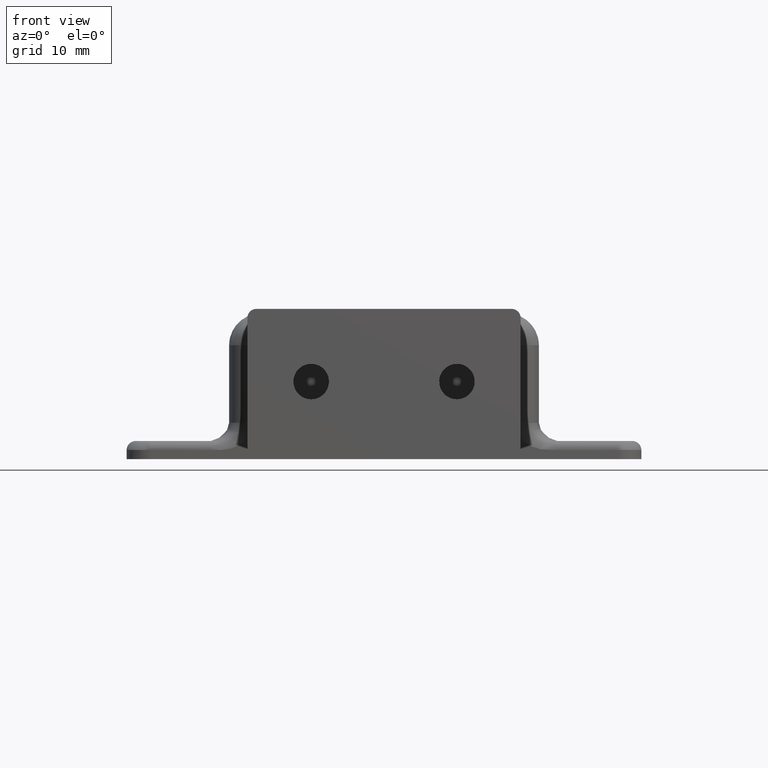
[diagram: clean part render]
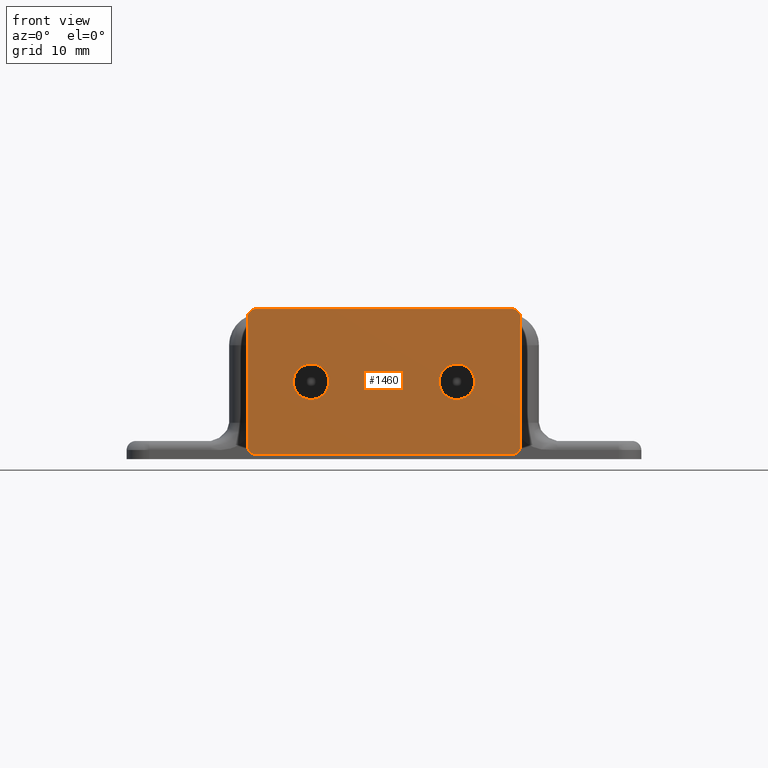
[diagram: same view with one face highlighted and labeled with its STEP entity id]
A machine part, front view. The second image highlights one B-rep face of the part: STEP entity #1460.
In plain terms, the highlighted face is a freeform B-spline surface patch.
Its self-contained STEP definition (entity closure, byte-faithful):
#781=CARTESIAN_POINT('',(-9.943988800772612,-28.100005999999901,8.347004763241912));
#782=VERTEX_POINT('',#781);
#788=CARTESIAN_POINT('',(-8.0,-28.100005999999901,6.550000000000001));
#789=VERTEX_POINT('',#788);
#790=CARTESIAN_POINT('',(-8.0,-28.100005999999901,6.550000000000001));
#791=CARTESIAN_POINT('',(-9.802561458568334,-28.100005999999890,6.550000000000001));
#792=CARTESIAN_POINT('',(-9.943988800772612,-28.100005999999905,8.347004763241912));
#800=(BOUNDED_CURVE()B_SPLINE_CURVE(2,(#790,#791,#792),.UNSPECIFIED.,.F.,.U.)B_SPLINE_CURVE_WITH_KNOTS((3,3),(0.0,0.236331300617108),.UNSPECIFIED.)CURVE()GEOMETRIC_REPRESENTATION_ITEM()RATIONAL_B_SPLINE_CURVE((1.0,0.723120658623543,0.969723356139136))REPRESENTATION_ITEM(''));
#801=EDGE_CURVE('',#789,#782,#800,.T.);
#803=CARTESIAN_POINT('',(-6.056011199227388,-28.100005999999901,8.652995236758089));
#804=VERTEX_POINT('',#803);
#805=CARTESIAN_POINT('',(-6.056011199227388,-28.100005999999905,8.652995236758089));
#806=CARTESIAN_POINT('',(-6.049999999999999,-28.100005999999897,8.576615708754158));
#807=CARTESIAN_POINT('',(-6.050000000000000,-28.100005999999901,8.500000000000000));
#808=CARTESIAN_POINT('',(-6.050000000000000,-28.100005999999894,6.550000000000001));
#809=CARTESIAN_POINT('',(-8.0,-28.100005999999901,6.550000000000001));
#817=(BOUNDED_CURVE()B_SPLINE_CURVE(2,(#805,#806,#807,#808,#809),.UNSPECIFIED.,.F.,.U.)B_SPLINE_CURVE_WITH_KNOTS((3,2,3),(0.736331300617107,0.750000000000000,1.0),.UNSPECIFIED.)CURVE()GEOMETRIC_REPRESENTATION_ITEM()RATIONAL_B_SPLINE_CURVE((0.969723356139135,0.983986122563004,1.0,0.707106781186548,1.0))REPRESENTATION_ITEM(''));
#818=EDGE_CURVE('',#804,#789,#817,.T.);
#855=CARTESIAN_POINT('',(-8.0,-28.100005999999901,10.449999999999999));
#856=VERTEX_POINT('',#855);
#857=CARTESIAN_POINT('',(-8.0,-28.100005999999901,10.449999999999999));
#858=CARTESIAN_POINT('',(-6.197438541431668,-28.100005999999908,10.450000000000001));
#859=CARTESIAN_POINT('',(-6.056011199227388,-28.100005999999905,8.652995236758089));
#867=(BOUNDED_CURVE()B_SPLINE_CURVE(2,(#857,#858,#859),.UNSPECIFIED.,.F.,.U.)B_SPLINE_CURVE_WITH_KNOTS((3,3),(0.500000000000000,0.736331300617108),.UNSPECIFIED.)CURVE()GEOMETRIC_REPRESENTATION_ITEM()RATIONAL_B_SPLINE_CURVE((1.0,0.723120658623543,0.969723356139136))REPRESENTATION_ITEM(''));
#868=EDGE_CURVE('',#856,#804,#867,.T.);
#870=CARTESIAN_POINT('',(-9.943988800772612,-28.100005999999894,8.347004763241912));
#871=CARTESIAN_POINT('',(-9.950000000000001,-28.100005999999905,8.423384291245840));
#872=CARTESIAN_POINT('',(-9.950000000000001,-28.100005999999901,8.500000000000000));
#873=CARTESIAN_POINT('',(-9.950000000000001,-28.100005999999894,10.450000000000001));
#874=CARTESIAN_POINT('',(-8.0,-28.100005999999901,10.449999999999999));
#882=(BOUNDED_CURVE()B_SPLINE_CURVE(2,(#870,#871,#872,#873,#874),.UNSPECIFIED.,.F.,.U.)B_SPLINE_CURVE_WITH_KNOTS((3,2,3),(0.236331300617107,0.250000000000000,0.500000000000000),.UNSPECIFIED.)CURVE()GEOMETRIC_REPRESENTATION_ITEM()RATIONAL_B_SPLINE_CURVE((0.969723356139135,0.983986122563005,1.0,0.707106781186548,1.0))REPRESENTATION_ITEM(''));
#883=EDGE_CURVE('',#782,#856,#882,.T.);
#1128=CARTESIAN_POINT('',(9.936368576392088,-28.100005999999901,8.269833242275775));
#1129=VERTEX_POINT('',#1128);
#1135=CARTESIAN_POINT('',(8.0,-28.100005999999901,10.449999999999999));
#1136=VERTEX_POINT('',#1135);
#1137=CARTESIAN_POINT('',(9.936368576392088,-28.100005999999908,8.269833242275775));
#1138=CARTESIAN_POINT('',(9.950000000000001,-28.100005999999905,8.384512966533711));
#1139=CARTESIAN_POINT('',(9.950000000000001,-28.100005999999901,8.500000000000000));
#1140=CARTESIAN_POINT('',(9.950000000000001,-28.100005999999894,10.450000000000001));
#1141=CARTESIAN_POINT('',(8.0,-28.100005999999901,10.449999999999999));
#1149=(BOUNDED_CURVE()B_SPLINE_CURVE(2,(#1137,#1138,#1139,#1140,#1141),.UNSPECIFIED.,.F.,.U.)B_SPLINE_CURVE_WITH_KNOTS((3,2,3),(0.229562473490587,0.250000000000000,0.500000000000000),.UNSPECIFIED.)CURVE()GEOMETRIC_REPRESENTATION_ITEM()RATIONAL_B_SPLINE_CURVE((0.956026754138773,0.976055948304291,1.0,0.707106781186548,1.0))REPRESENTATION_ITEM(''));
#1150=EDGE_CURVE('',#1129,#1136,#1149,.T.);
#1152=CARTESIAN_POINT('',(6.053636989534108,-28.100005999999901,8.619042141629866));
#1153=VERTEX_POINT('',#1152);
#1154=CARTESIAN_POINT('',(8.0,-28.100005999999901,10.449999999999999));
#1155=CARTESIAN_POINT('',(6.165620799090311,-28.100005999999905,10.450000000000001));
#1156=CARTESIAN_POINT('',(6.053636989534108,-28.100005999999901,8.619042141629866));
#1164=(BOUNDED_CURVE()B_SPLINE_CURVE(2,(#1154,#1155,#1156),.UNSPECIFIED.,.F.,.U.)B_SPLINE_CURVE_WITH_KNOTS((3,3),(0.500000000000000,0.739333184796781),.UNSPECIFIED.)CURVE()GEOMETRIC_REPRESENTATION_ITEM()RATIONAL_B_SPLINE_CURVE((1.0,0.719603732543983,0.976072518650995))REPRESENTATION_ITEM(''));
#1165=EDGE_CURVE('',#1136,#1153,#1164,.T.);
#1199=CARTESIAN_POINT('',(8.0,-28.100005999999901,6.550000000000001));
#1200=VERTEX_POINT('',#1199);
#1201=CARTESIAN_POINT('',(6.053636989534108,-28.100005999999901,8.619042141629866));
#1202=CARTESIAN_POINT('',(6.050000000000000,-28.100005999999894,8.559576629681274));
#1203=CARTESIAN_POINT('',(6.050000000000000,-28.100005999999901,8.500000000000000));
#1204=CARTESIAN_POINT('',(6.050000000000000,-28.100005999999894,6.550000000000001));
#1205=CARTESIAN_POINT('',(8.0,-28.100005999999901,6.550000000000001));
#1213=(BOUNDED_CURVE()B_SPLINE_CURVE(2,(#1201,#1202,#1203,#1204,#1205),.UNSPECIFIED.,.F.,.U.)B_SPLINE_CURVE_WITH_KNOTS((3,2,3),(0.739333184796781,0.750000000000000,1.0),.UNSPECIFIED.)CURVE()GEOMETRIC_REPRESENTATION_ITEM()RATIONAL_B_SPLINE_CURVE((0.976072518650995,0.987503048642564,1.0,0.707106781186548,1.0))REPRESENTATION_ITEM(''));
#1214=EDGE_CURVE('',#1153,#1200,#1213,.T.);
#1216=CARTESIAN_POINT('',(8.0,-28.100005999999901,6.550000000000001));
#1217=CARTESIAN_POINT('',(9.731940325346576,-28.100005999999905,6.550000000000000));
#1218=CARTESIAN_POINT('',(9.936368576392088,-28.100005999999908,8.269833242275775));
#1226=(BOUNDED_CURVE()B_SPLINE_CURVE(2,(#1216,#1217,#1218),.UNSPECIFIED.,.F.,.U.)B_SPLINE_CURVE_WITH_KNOTS((3,3),(0.0,0.229562473490587),.UNSPECIFIED.)CURVE()GEOMETRIC_REPRESENTATION_ITEM()RATIONAL_B_SPLINE_CURVE((1.0,0.731050832882256,0.956026754138773))REPRESENTATION_ITEM(''));
#1227=EDGE_CURVE('',#1200,#1129,#1226,.T.);
#1347=CARTESIAN_POINT('',(-16.498499941854181,-28.100005999999901,17.299199968988891));
#1348=CARTESIAN_POINT('',(16.498500746516889,-28.100005999999901,17.299199968988891));
#1349=CARTESIAN_POINT('',(-16.498499941854181,-28.100005999999901,-0.299200398142337));
#1350=CARTESIAN_POINT('',(16.498500746516889,-28.100005999999901,-0.299200398142337));
#1351=B_SPLINE_SURFACE_WITH_KNOTS('',1,1,((#1347,#1349),(#1348,#1350)),.UNSPECIFIED.,.F.,.F.,.U.,(2,2),(2,2),(0.0,32.997000688371060),(0.0,17.598400367131230),.UNSPECIFIED.);
#1352=CARTESIAN_POINT('',(-14.000000052359880,-28.100005999999851,16.500000000000000));
#1353=VERTEX_POINT('',#1352);
#1354=CARTESIAN_POINT('',(13.999999947640120,-28.100005999999851,16.500000000000000));
#1355=VERTEX_POINT('',#1354);
#1356=CARTESIAN_POINT('',(-14.000000052359880,-28.100005999999851,16.500000000000000));
#1357=CARTESIAN_POINT('',(13.999999947640120,-28.100005999999851,16.500000000000000));
#1358=QUASI_UNIFORM_CURVE('',1,(#1356,#1357),.UNSPECIFIED.,.F.,.U.);
#1359=EDGE_CURVE('',#1353,#1355,#1358,.T.);
#1360=ORIENTED_EDGE('',*,*,#1359,.F.);
#1361=CARTESIAN_POINT('',(-15.0,-28.100005999999851,15.500000000000000));
#1362=VERTEX_POINT('',#1361);
#1363=CARTESIAN_POINT('',(-14.000000052359880,-28.100005999999851,16.500000000000000));
#1364=CARTESIAN_POINT('',(-15.0,-28.100005999999855,16.499999947640131));
#1365=CARTESIAN_POINT('',(-15.0,-28.100005999999851,15.500000000000000));
#1373=(BOUNDED_CURVE()B_SPLINE_CURVE(2,(#1363,#1364,#1365),.UNSPECIFIED.,.F.,.U.)CURVE()GEOMETRIC_REPRESENTATION_ITEM()QUASI_UNIFORM_CURVE()RATIONAL_B_SPLINE_CURVE((1.0,0.707106799698560,1.0))REPRESENTATION_ITEM(''));
#1374=EDGE_CURVE('',#1353,#1362,#1373,.T.);
#1375=ORIENTED_EDGE('',*,*,#1374,.T.);
#1376=CARTESIAN_POINT('',(-15.0,-28.100005999999851,1.500000157079635));
#1377=VERTEX_POINT('',#1376);
#1378=CARTESIAN_POINT('',(-15.0,-28.100005999999851,1.500000157079635));
#1379=CARTESIAN_POINT('',(-15.0,-28.100005999999851,15.500000000000000));
#1380=QUASI_UNIFORM_CURVE('',1,(#1378,#1379),.UNSPECIFIED.,.F.,.U.);
#1381=EDGE_CURVE('',#1377,#1362,#1380,.T.);
#1382=ORIENTED_EDGE('',*,*,#1381,.F.);
#1383=CARTESIAN_POINT('',(-14.0,-28.100005999999851,0.500000000000000));
#1384=VERTEX_POINT('',#1383);
#1385=CARTESIAN_POINT('',(-14.999999999999989,-28.100005999999851,1.500000157079635));
#1386=CARTESIAN_POINT('',(-15.000000065064516,-28.100005999999851,1.085786548698985));
#1387=CARTESIAN_POINT('',(-14.707106836722581,-28.100005999999851,0.792893274349492));
#1388=CARTESIAN_POINT('',(-14.414213608380656,-28.100005999999851,0.500000000000000));
#1389=CARTESIAN_POINT('',(-14.0,-28.100005999999851,0.500000000000000));
#1397=(BOUNDED_CURVE()B_SPLINE_CURVE(2,(#1385,#1386,#1387,#1388,#1389),.UNSPECIFIED.,.F.,.U.)B_SPLINE_CURVE_WITH_KNOTS((3,2,3),(0.0,0.500000000000000,1.0),.UNSPECIFIED.)CURVE()GEOMETRIC_REPRESENTATION_ITEM()RATIONAL_B_SPLINE_CURVE((1.0,0.923879517483343,1.0,0.923879517483343,1.0))REPRESENTATION_ITEM(''));
#1398=EDGE_CURVE('',#1377,#1384,#1397,.T.);
#1399=ORIENTED_EDGE('',*,*,#1398,.T.);
#1400=CARTESIAN_POINT('',(13.999999947640120,-28.100005999999851,0.500000000000000));
#1401=VERTEX_POINT('',#1400);
#1402=CARTESIAN_POINT('',(13.999999947640120,-28.100005999999851,0.500000000000000));
#1403=CARTESIAN_POINT('',(-14.0,-28.100005999999851,0.500000000000000));
#1404=QUASI_UNIFORM_CURVE('',1,(#1402,#1403),.UNSPECIFIED.,.F.,.U.);
#1405=EDGE_CURVE('',#1401,#1384,#1404,.T.);
#1406=ORIENTED_EDGE('',*,*,#1405,.F.);
#1407=CARTESIAN_POINT('',(15.0,-28.100005999999851,1.500000000000000));
#1408=VERTEX_POINT('',#1407);
#1409=CARTESIAN_POINT('',(13.999999947640120,-28.100005999999851,0.500000000000001));
#1410=CARTESIAN_POINT('',(14.414213525349068,-28.100005999999851,0.499999978311828));
#1411=CARTESIAN_POINT('',(14.707106762674540,-28.100005999999851,0.792893200301440));
#1412=CARTESIAN_POINT('',(15.0,-28.100005999999851,1.085786422291051));
#1413=CARTESIAN_POINT('',(15.0,-28.100005999999851,1.500000000000000));
#1421=(BOUNDED_CURVE()B_SPLINE_CURVE(2,(#1409,#1410,#1411,#1412,#1413),.UNSPECIFIED.,.F.,.U.)B_SPLINE_CURVE_WITH_KNOTS((3,2,3),(0.0,0.500000000000000,1.0),.UNSPECIFIED.)CURVE()GEOMETRIC_REPRESENTATION_ITEM()RATIONAL_B_SPLINE_CURVE((1.0,0.923879527501972,1.0,0.923879527501972,1.0))REPRESENTATION_ITEM(''));
#1422=EDGE_CURVE('',#1401,#1408,#1421,.T.);
#1423=ORIENTED_EDGE('',*,*,#1422,.T.);
#1424=CARTESIAN_POINT('',(15.0,-28.100005999999851,15.500000000000000));
#1425=VERTEX_POINT('',#1424);
#1426=CARTESIAN_POINT('',(15.0,-28.100005999999851,15.500000000000000));
#1427=CARTESIAN_POINT('',(15.0,-28.100005999999851,1.500000000000000));
#1428=QUASI_UNIFORM_CURVE('',1,(#1426,#1427),.UNSPECIFIED.,.F.,.U.);
#1429=EDGE_CURVE('',#1425,#1408,#1428,.T.);
#1430=ORIENTED_EDGE('',*,*,#1429,.F.);
#1431=CARTESIAN_POINT('',(15.0,-28.100005999999851,15.500000000000000));
#1432=CARTESIAN_POINT('',(14.999999999999998,-28.100005999999848,15.914213577708946));
#1433=CARTESIAN_POINT('',(14.707106762674540,-28.100005999999851,16.207106799698561));
#1434=CARTESIAN_POINT('',(14.414213525349066,-28.100005999999848,16.500000021688173));
#1435=CARTESIAN_POINT('',(13.999999947640120,-28.100005999999851,16.500000000000000));
#1443=(BOUNDED_CURVE()B_SPLINE_CURVE(2,(#1431,#1432,#1433,#1434,#1435),.UNSPECIFIED.,.F.,.U.)B_SPLINE_CURVE_WITH_KNOTS((3,2,3),(0.0,0.500000000000000,1.0),.UNSPECIFIED.)CURVE()GEOMETRIC_REPRESENTATION_ITEM()RATIONAL_B_SPLINE_CURVE((1.0,0.923879527501972,1.0,0.923879527501972,1.0))REPRESENTATION_ITEM(''));
#1444=EDGE_CURVE('',#1425,#1355,#1443,.T.);
#1445=ORIENTED_EDGE('',*,*,#1444,.T.);
#1446=EDGE_LOOP('',(#1360,#1375,#1382,#1399,#1406,#1423,#1430,#1445));
#1447=FACE_OUTER_BOUND('',#1446,.T.);
#1448=ORIENTED_EDGE('',*,*,#1165,.F.);
#1449=ORIENTED_EDGE('',*,*,#1150,.F.);
#1450=ORIENTED_EDGE('',*,*,#1227,.F.);
#1451=ORIENTED_EDGE('',*,*,#1214,.F.);
#1452=EDGE_LOOP('',(#1448,#1449,#1450,#1451));
#1453=FACE_BOUND('',#1452,.T.);
#1454=ORIENTED_EDGE('',*,*,#868,.T.);
#1455=ORIENTED_EDGE('',*,*,#818,.T.);
#1456=ORIENTED_EDGE('',*,*,#801,.T.);
#1457=ORIENTED_EDGE('',*,*,#883,.T.);
#1458=EDGE_LOOP('',(#1454,#1455,#1456,#1457));
#1459=FACE_BOUND('',#1458,.T.);
#1460=ADVANCED_FACE('',(#1447,#1453,#1459),#1351,.F.);